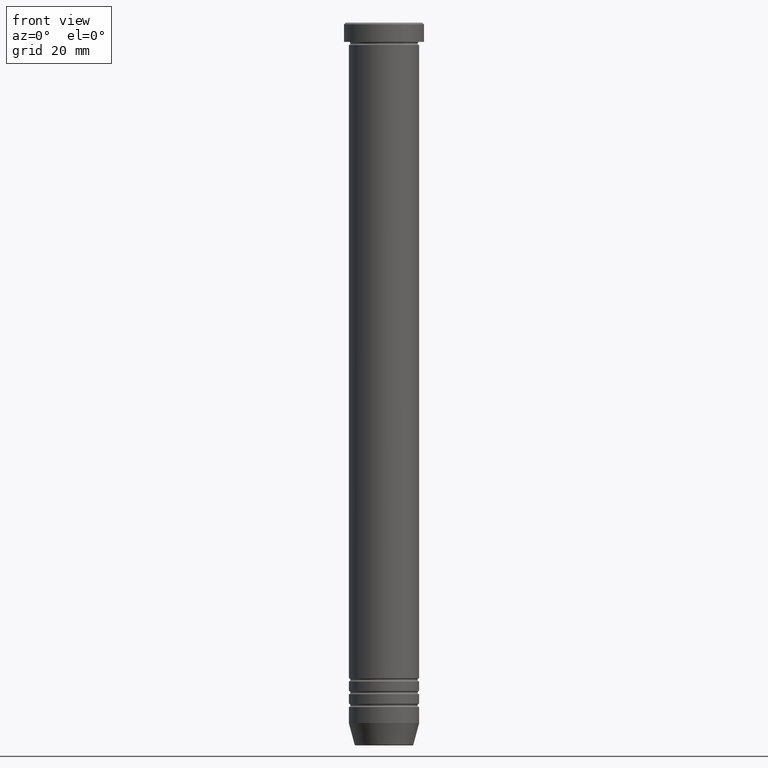
[diagram: clean part render]
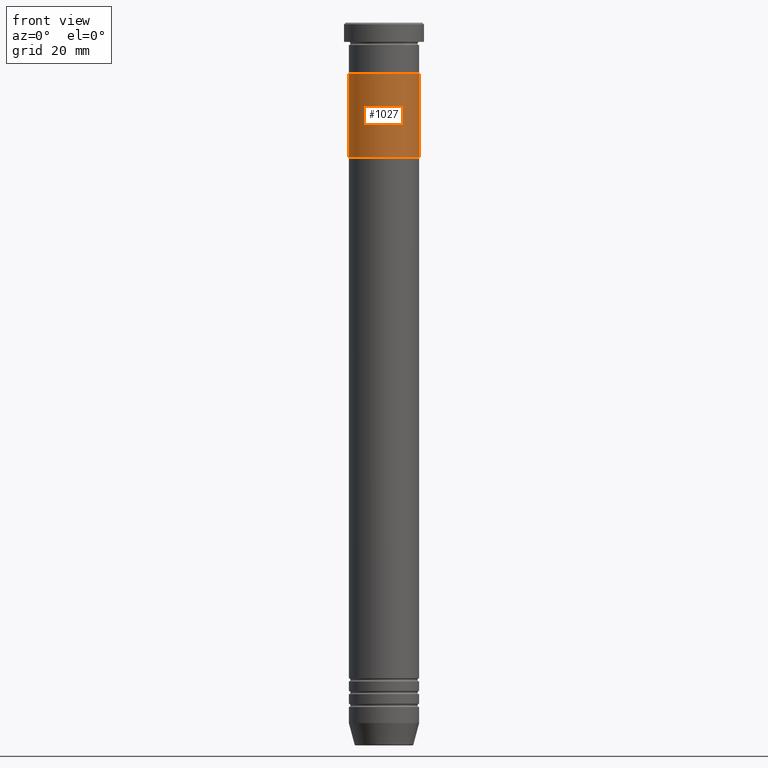
[diagram: same view with one face highlighted and labeled with its STEP entity id]
A machine part, front view. The second image highlights one B-rep face of the part: STEP entity #1027.
In plain terms, the highlighted cylindrical surface (edge-blend (fillet) strip) has radius 11 mm, axis along (-0, -0, 1).
Its self-contained STEP definition (entity closure, byte-faithful):
#15 = ORIENTED_EDGE ( 'NONE', *, *, #185, .T. ) ;
#16 = LINE ( 'NONE', #904, #367 ) ;
#135 = EDGE_LOOP ( 'NONE', ( #455, #707, #15, #717 ) ) ;
#136 = DIRECTION ( 'NONE',  ( 0.000000000000000000, 0.000000000000000000, -1.000000000000000000 ) ) ;
#141 = CARTESIAN_POINT ( 'NONE',  ( 0.000000000000000000, 0.000000000000000000, -16.00000000000000000 ) ) ;
#163 = EDGE_CURVE ( 'NONE', #216, #491, #943, .T. ) ;
#176 = AXIS2_PLACEMENT_3D ( 'NONE', #339, #786, #446 ) ;
#185 = EDGE_CURVE ( 'NONE', #289, #216, #411, .T. ) ;
#216 = VERTEX_POINT ( 'NONE', #504 ) ;
#220 = DIRECTION ( 'NONE',  ( 0.000000000000000000, 0.000000000000000000, -1.000000000000000000 ) ) ;
#253 = AXIS2_PLACEMENT_3D ( 'NONE', #865, #136, #492 ) ;
#284 = DIRECTION ( 'NONE',  ( -0.000000000000000000, -0.000000000000000000, 1.000000000000000000 ) ) ;
#289 = VERTEX_POINT ( 'NONE', #450 ) ;
#306 = AXIS2_PLACEMENT_3D ( 'NONE', #141, #220, #852 ) ;
#339 = CARTESIAN_POINT ( 'NONE',  ( 0.000000000000000000, 0.000000000000000000, -41.99999999999999289 ) ) ;
#367 = VECTOR ( 'NONE', #284, 1000.000000000000000 ) ;
#411 = LINE ( 'NONE', #769, #871 ) ;
#431 = FACE_OUTER_BOUND ( 'NONE', #135, .T. ) ;
#446 = DIRECTION ( 'NONE',  ( 1.000000000000000000, 0.000000000000000000, 0.000000000000000000 ) ) ;
#450 = CARTESIAN_POINT ( 'NONE',  ( 11.00000000000000000, 0.000000000000000000, -41.99999999999999289 ) ) ;
#455 = ORIENTED_EDGE ( 'NONE', *, *, #810, .F. ) ;
#491 = VERTEX_POINT ( 'NONE', #940 ) ;
#492 = DIRECTION ( 'NONE',  ( -1.000000000000000000, 0.000000000000000000, 0.000000000000000000 ) ) ;
#504 = CARTESIAN_POINT ( 'NONE',  ( 11.00000000000000000, 0.000000000000000000, -16.00000000000000000 ) ) ;
#572 = CIRCLE ( 'NONE', #253, 11.00000000000000000 ) ;
#584 = CARTESIAN_POINT ( 'NONE',  ( -11.00000000000000000, 1.347111479062088207E-15, -41.99999999999999289 ) ) ;
#707 = ORIENTED_EDGE ( 'NONE', *, *, #985, .F. ) ;
#717 = ORIENTED_EDGE ( 'NONE', *, *, #163, .T. ) ;
#769 = CARTESIAN_POINT ( 'NONE',  ( 11.00000000000000000, 0.000000000000000000, -41.99999999999999289 ) ) ;
#779 = CYLINDRICAL_SURFACE ( 'NONE', #176, 11.00000000000000000 ) ;
#786 = DIRECTION ( 'NONE',  ( -0.000000000000000000, -0.000000000000000000, 1.000000000000000000 ) ) ;
#810 = EDGE_CURVE ( 'NONE', #960, #491, #16, .T. ) ;
#852 = DIRECTION ( 'NONE',  ( -1.000000000000000000, 0.000000000000000000, 0.000000000000000000 ) ) ;
#865 = CARTESIAN_POINT ( 'NONE',  ( 0.000000000000000000, 0.000000000000000000, -41.99999999999999289 ) ) ;
#871 = VECTOR ( 'NONE', #1120, 1000.000000000000000 ) ;
#904 = CARTESIAN_POINT ( 'NONE',  ( -11.00000000000000000, 1.347111479062088207E-15, -41.99999999999999289 ) ) ;
#940 = CARTESIAN_POINT ( 'NONE',  ( -11.00000000000000000, 1.347111479062088207E-15, -16.00000000000000000 ) ) ;
#943 = CIRCLE ( 'NONE', #306, 11.00000000000000000 ) ;
#960 = VERTEX_POINT ( 'NONE', #584 ) ;
#985 = EDGE_CURVE ( 'NONE', #289, #960, #572, .T. ) ;
#1027 = ADVANCED_FACE ( 'NONE', ( #431 ), #779, .T. ) ;
#1120 = DIRECTION ( 'NONE',  ( -0.000000000000000000, -0.000000000000000000, 1.000000000000000000 ) ) ;